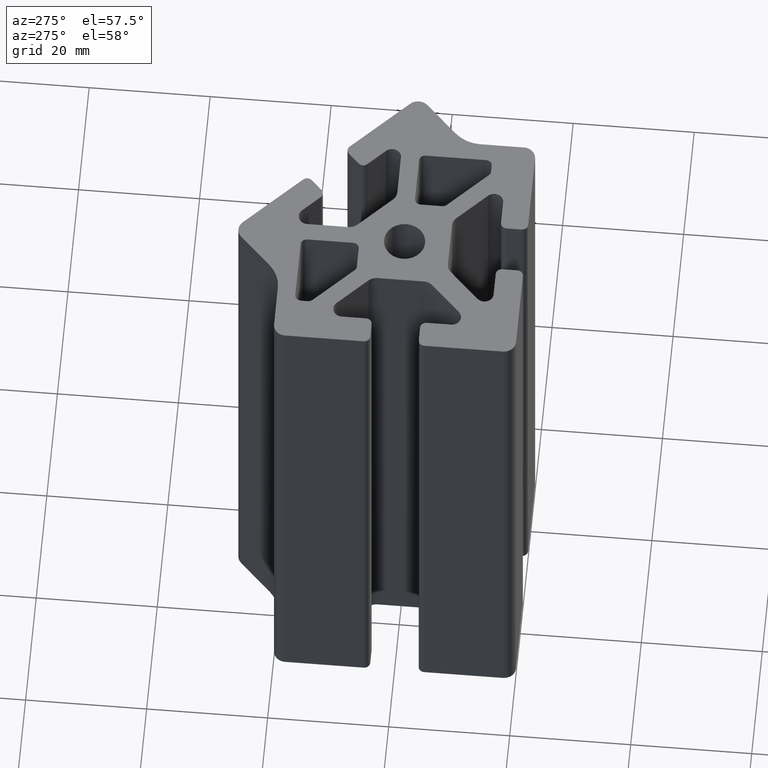
[diagram: clean part render]
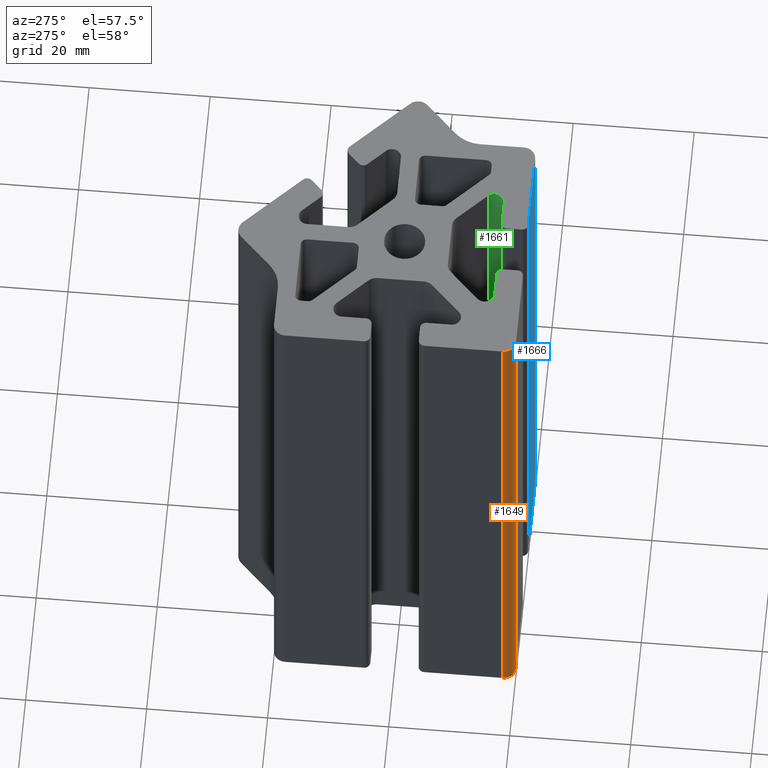
[diagram: same view with three faces highlighted in distinct colors, each labeled with its STEP entity id]
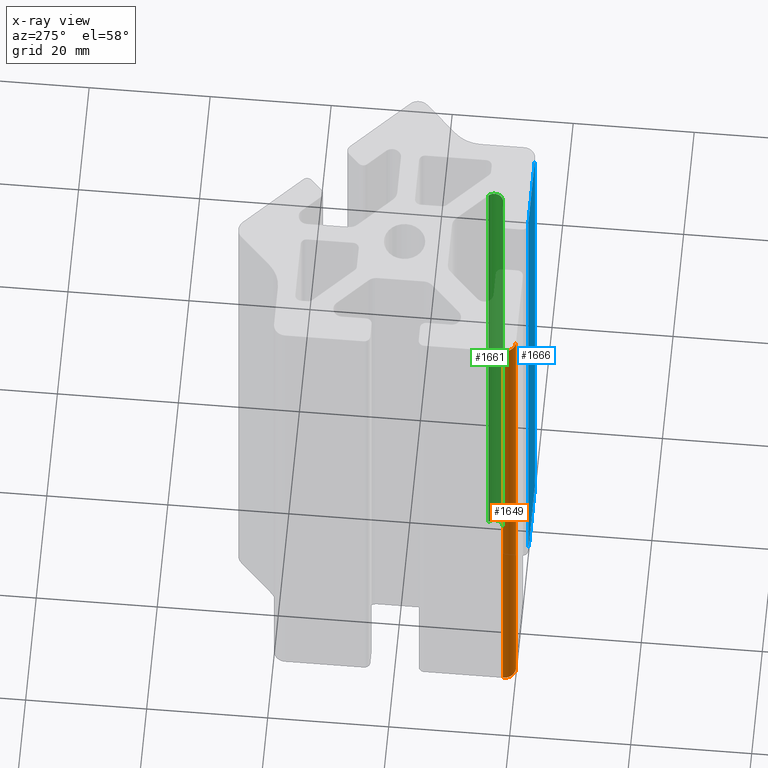
[diagram: x-ray of the same camera — body ghosted, the three highlighted faces saturated]
A machine part, auxiliary view with three faces highlighted in distinct colors.
The next image is the same camera in x-ray (body ghosted, the three faces saturated) — at least one of them is partly hidden behind the body in this view.
Their STEP definitions:

[orange] entity #1649 — the highlighted cylindrical surface (edge-blend (fillet) strip) has radius 2 mm, axis along (0, 0, 1).
#44=CIRCLE('',#1760,1.99999600810226);
#45=CIRCLE('',#1761,1.99999600810226);
#117=CYLINDRICAL_SURFACE('',#1759,1.99999600810226);
#171=FACE_OUTER_BOUND('',#257,.T.);
#257=EDGE_LOOP('',(#1172,#1173,#1174,#1175));
#373=LINE('',#2533,#540);
#375=LINE('',#2539,#542);
#540=VECTOR('',#2022,100.);
#542=VECTOR('',#2028,100.);
#707=VERTEX_POINT('',#2530);
#708=VERTEX_POINT('',#2532);
#709=VERTEX_POINT('',#2536);
#710=VERTEX_POINT('',#2538);
#897=EDGE_CURVE('',#707,#708,#373,.T.);
#899=EDGE_CURVE('',#707,#709,#44,.T.);
#900=EDGE_CURVE('',#709,#710,#375,.T.);
#901=EDGE_CURVE('',#708,#710,#45,.T.);
#1172=ORIENTED_EDGE('',*,*,#899,.T.);
#1173=ORIENTED_EDGE('',*,*,#900,.T.);
#1174=ORIENTED_EDGE('',*,*,#901,.F.);
#1175=ORIENTED_EDGE('',*,*,#897,.F.);
#1649=ADVANCED_FACE('',(#171),#117,.T.);
#1759=AXIS2_PLACEMENT_3D('',#2535,#2024,#2025);
#1760=AXIS2_PLACEMENT_3D('',#2537,#2026,#2027);
#1761=AXIS2_PLACEMENT_3D('',#2540,#2029,#2030);
#2022=DIRECTION('',(0.,0.,1.));
#2024=DIRECTION('center_axis',(0.,0.,1.));
#2025=DIRECTION('ref_axis',(-1.,-4.050912E-9,0.));
#2026=DIRECTION('center_axis',(0.,0.,1.));
#2027=DIRECTION('ref_axis',(-1.,-4.050912E-9,0.));
#2028=DIRECTION('',(0.,0.,1.));
#2029=DIRECTION('center_axis',(0.,0.,1.));
#2030=DIRECTION('ref_axis',(-1.,-4.050912E-9,0.));
#2530=CARTESIAN_POINT('',(30.00006772,-17.999964,0.));
#2532=CARTESIAN_POINT('',(30.00006772,-17.999964,100.));
#2533=CARTESIAN_POINT('',(30.00006772,-17.999964,0.));
#2535=CARTESIAN_POINT('Origin',(32.0000637281022,-17.9999639918982,0.));
#2536=CARTESIAN_POINT('',(32.0000637119,-19.99996,0.));
#2537=CARTESIAN_POINT('Origin',(32.0000637281022,-17.9999639918982,0.));
#2538=CARTESIAN_POINT('',(32.0000637119,-19.99996,100.));
#2539=CARTESIAN_POINT('',(32.0000637119,-19.99996,0.));
#2540=CARTESIAN_POINT('Origin',(32.0000637281022,-17.9999639918982,100.));

[blue] entity #1666 — the highlighted planar face has unit normal (0, -1, 0).
#188=FACE_OUTER_BOUND('',#274,.T.);
#274=EDGE_LOOP('',(#1240,#1241,#1242,#1243));
#407=LINE('',#2635,#574);
#408=LINE('',#2639,#575);
#409=LINE('',#2641,#576);
#410=LINE('',#2642,#577);
#574=VECTOR('',#2124,100.);
#575=VECTOR('',#2129,12.9999625641);
#576=VECTOR('',#2130,100.);
#577=VECTOR('',#2131,12.9999625641);
#741=VERTEX_POINT('',#2632);
#742=VERTEX_POINT('',#2634);
#743=VERTEX_POINT('',#2638);
#744=VERTEX_POINT('',#2640);
#948=EDGE_CURVE('',#741,#742,#407,.T.);
#950=EDGE_CURVE('',#741,#743,#408,.T.);
#951=EDGE_CURVE('',#743,#744,#409,.T.);
#952=EDGE_CURVE('',#742,#744,#410,.T.);
#1240=ORIENTED_EDGE('',*,*,#950,.T.);
#1241=ORIENTED_EDGE('',*,*,#951,.T.);
#1242=ORIENTED_EDGE('',*,*,#952,.F.);
#1243=ORIENTED_EDGE('',*,*,#948,.F.);
#1602=PLANE('',#1794);
#1666=ADVANCED_FACE('',(#188),#1602,.T.);
#1794=AXIS2_PLACEMENT_3D('',#2637,#2127,#2128);
#2124=DIRECTION('',(0.,0.,1.));
#2127=DIRECTION('center_axis',(0.,-1.,0.));
#2128=DIRECTION('ref_axis',(0.,0.,-1.));
#2129=DIRECTION('',(1.,0.,0.));
#2130=DIRECTION('',(0.,0.,1.));
#2131=DIRECTION('',(1.,0.,0.));
#2632=CARTESIAN_POINT('',(55.0000177208825,-19.9999599950998,0.));
#2634=CARTESIAN_POINT('',(55.0000177208825,-19.9999599950998,100.));
#2635=CARTESIAN_POINT('',(55.0000177208825,-19.9999599950998,0.));
#2637=CARTESIAN_POINT('Origin',(55.0000177208825,-19.9999599950998,0.));
#2638=CARTESIAN_POINT('',(67.9999802849825,-19.9999599950998,0.));
#2639=CARTESIAN_POINT('',(55.0000177208825,-19.9999599950998,0.));
#2640=CARTESIAN_POINT('',(67.9999802849825,-19.9999599950998,100.));
#2641=CARTESIAN_POINT('',(67.9999802849825,-19.9999599950998,0.));
#2642=CARTESIAN_POINT('',(55.0000177208825,-19.9999599950998,100.));

[green] entity #1661 — the highlighted cylindrical surface (edge-blend (fillet) strip) has radius 1.5 mm, axis along (0, 0, -1).
#56=CIRCLE('',#1784,1.49999780512523);
#57=CIRCLE('',#1785,1.49999780512523);
#123=CYLINDRICAL_SURFACE('',#1783,1.49999780512523);
#183=FACE_OUTER_BOUND('',#269,.T.);
#269=EDGE_LOOP('',(#1220,#1221,#1222,#1223));
#397=LINE('',#2605,#564);
#399=LINE('',#2611,#566);
#564=VECTOR('',#2094,100.);
#566=VECTOR('',#2100,100.);
#731=VERTEX_POINT('',#2602);
#732=VERTEX_POINT('',#2604);
#733=VERTEX_POINT('',#2608);
#734=VERTEX_POINT('',#2610);
#933=EDGE_CURVE('',#731,#732,#397,.T.);
#935=EDGE_CURVE('',#731,#733,#56,.T.);
#936=EDGE_CURVE('',#733,#734,#399,.T.);
#937=EDGE_CURVE('',#732,#734,#57,.T.);
#1220=ORIENTED_EDGE('',*,*,#935,.T.);
#1221=ORIENTED_EDGE('',*,*,#936,.T.);
#1222=ORIENTED_EDGE('',*,*,#937,.F.);
#1223=ORIENTED_EDGE('',*,*,#933,.F.);
#1661=ADVANCED_FACE('',(#183),#123,.F.);
#1783=AXIS2_PLACEMENT_3D('',#2607,#2096,#2097);
#1784=AXIS2_PLACEMENT_3D('',#2609,#2098,#2099);
#1785=AXIS2_PLACEMENT_3D('',#2612,#2101,#2102);
#2094=DIRECTION('',(0.,0.,1.));
#2096=DIRECTION('center_axis',(0.,0.,-1.));
#2097=DIRECTION('ref_axis',(0.707106938664517,0.707106623708543,0.));
#2098=DIRECTION('center_axis',(0.,0.,-1.));
#2099=DIRECTION('ref_axis',(-2.2846187E-7,-0.999999999999974,0.));
#2100=DIRECTION('',(0.,0.,1.));
#2101=DIRECTION('center_axis',(0.,0.,-1.));
#2102=DIRECTION('ref_axis',(-2.2846187E-7,-0.999999999999974,0.));
#2602=CARTESIAN_POINT('',(60.1109160131113,-12.9393128063727,0.));
#2604=CARTESIAN_POINT('',(60.1109160131113,-12.9393128063727,100.));
#2605=CARTESIAN_POINT('',(60.1109160131113,-12.9393128063727,0.));
#2607=CARTESIAN_POINT('Origin',(59.0502571571257,-13.999971189925,0.));
#2608=CARTESIAN_POINT('',(59.0502568144334,-15.4999689950502,0.));
#2609=CARTESIAN_POINT('Origin',(59.0502571571257,-13.999971189925,0.));
#2610=CARTESIAN_POINT('',(59.0502568144334,-15.4999689950502,100.));
#2611=CARTESIAN_POINT('',(59.0502568144334,-15.4999689950502,0.));
#2612=CARTESIAN_POINT('Origin',(59.0502571571257,-13.999971189925,100.));